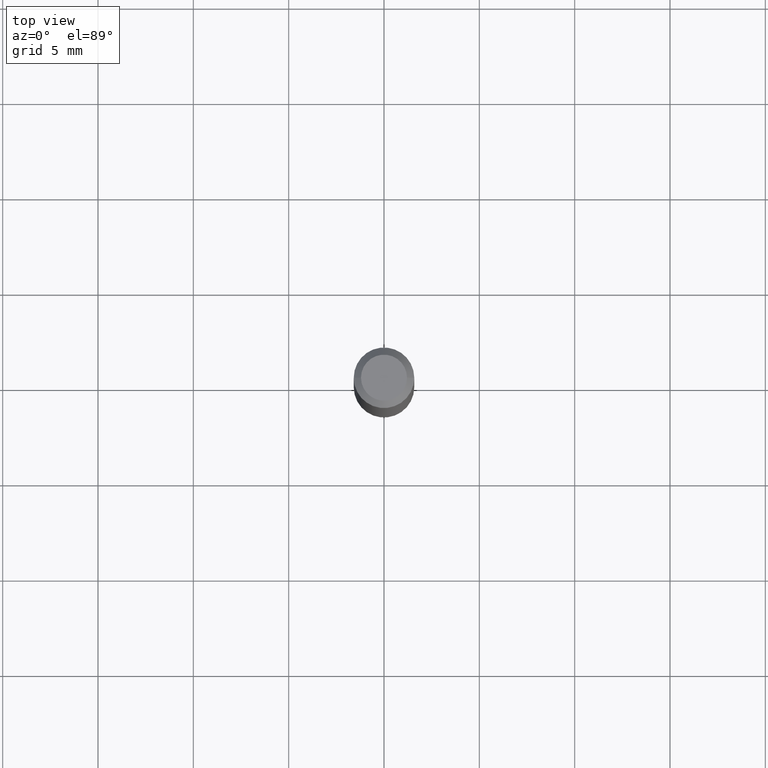
[diagram: clean part render]
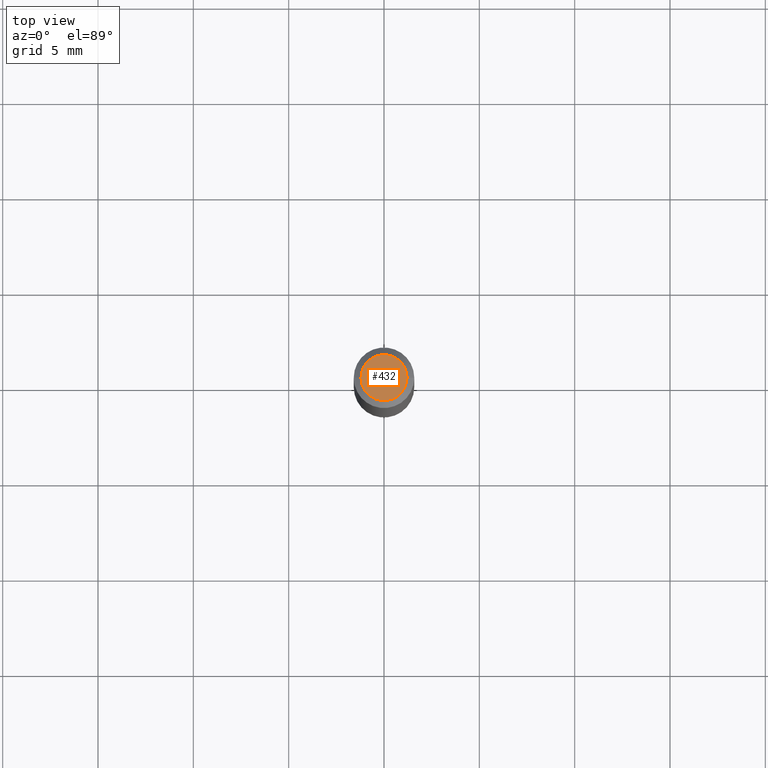
[diagram: same view with one face highlighted and labeled with its STEP entity id]
A machine part, top view. The second image highlights one B-rep face of the part: STEP entity #432.
In plain terms, the highlighted planar face has unit normal (0, -0, -1).
Its self-contained STEP definition (entity closure, byte-faithful):
#2 = DIRECTION ( 'NONE',  ( -2.445468806185136597E-29, 3.491481338843145583E-15, 1.000000000000000000 ) ) ;
#9 = EDGE_LOOP ( 'NONE', ( #462, #382 ) ) ;
#30 = CIRCLE ( 'NONE', #334, 0.04750000000000000749 ) ;
#61 = PLANE ( 'NONE',  #393 ) ;
#85 = FACE_OUTER_BOUND ( 'NONE', #9, .T. ) ;
#98 = DIRECTION ( 'NONE',  ( -2.445468806185136597E-29, 3.491481338843145583E-15, 1.000000000000000000 ) ) ;
#109 = EDGE_CURVE ( 'NONE', #336, #174, #205, .T. ) ;
#133 = DIRECTION ( 'NONE',  ( 2.438088387897960049E-29, -3.491481338843145188E-15, -1.000000000000000000 ) ) ;
#151 = DIRECTION ( 'NONE',  ( 1.000000000000000000, -6.982962677686266711E-15, 4.852736867747365086E-29 ) ) ;
#174 = VERTEX_POINT ( 'NONE', #197 ) ;
#179 = CARTESIAN_POINT ( 'NONE',  ( -6.680649051745406845E-45, 9.538196290434862081E-31, 2.731847993664263218E-16 ) ) ;
#195 = EDGE_CURVE ( 'NONE', #174, #336, #30, .T. ) ;
#197 = CARTESIAN_POINT ( 'NONE',  ( -0.04750000000000000749, 3.578768372314221353E-16, 2.731847993664239060E-16 ) ) ;
#205 = CIRCLE ( 'NONE', #323, 0.04750000000000000749 ) ;
#253 = CARTESIAN_POINT ( 'NONE',  ( 3.316907271900976589E-16, 0.04750000000000000749, -2.925296391183627249E-17 ) ) ;
#323 = AXIS2_PLACEMENT_3D ( 'NONE', #179, #98, #425 ) ;
#334 = AXIS2_PLACEMENT_3D ( 'NONE', #362, #2, #151 ) ;
#336 = VERTEX_POINT ( 'NONE', #381 ) ;
#362 = CARTESIAN_POINT ( 'NONE',  ( -6.680649051745406845E-45, 9.538196290434862081E-31, 2.731847993664263218E-16 ) ) ;
#381 = CARTESIAN_POINT ( 'NONE',  ( 0.04750000000000000749, -4.035134999187568762E-16, 2.731847993664288856E-16 ) ) ;
#382 = ORIENTED_EDGE ( 'NONE', *, *, #109, .T. ) ;
#393 = AXIS2_PLACEMENT_3D ( 'NONE', #253, #133, #422 ) ;
#422 = DIRECTION ( 'NONE',  ( -1.000000000000000000, 6.982962677686265922E-15, -4.876176775795935793E-29 ) ) ;
#425 = DIRECTION ( 'NONE',  ( 1.000000000000000000, -6.982962677686266711E-15, 4.852736867747365086E-29 ) ) ;
#432 = ADVANCED_FACE ( 'NONE', ( #85 ), #61, .F. ) ;
#462 = ORIENTED_EDGE ( 'NONE', *, *, #195, .T. ) ;